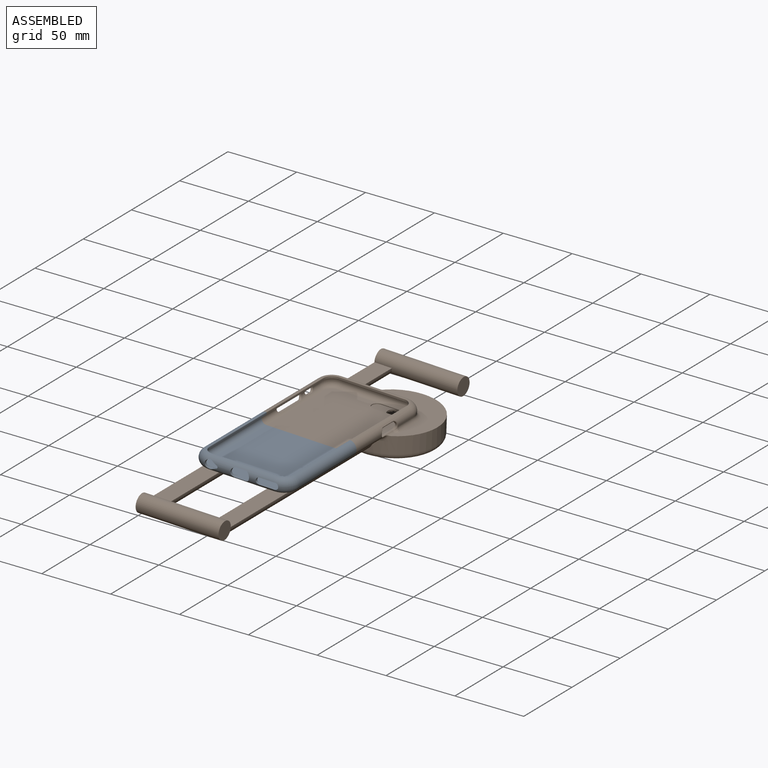
[diagram: assembled view]
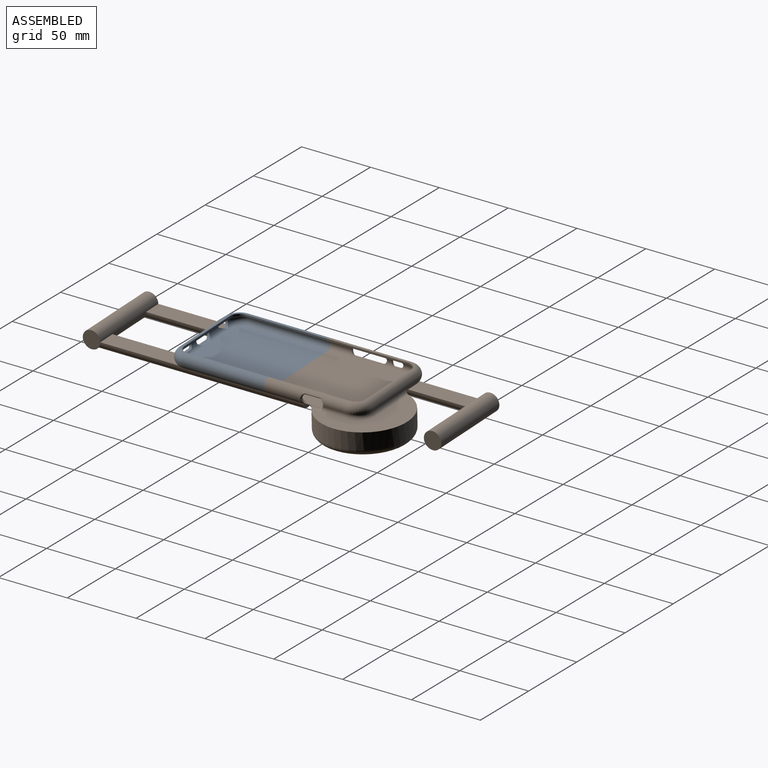
[diagram: assembled view, second angle]
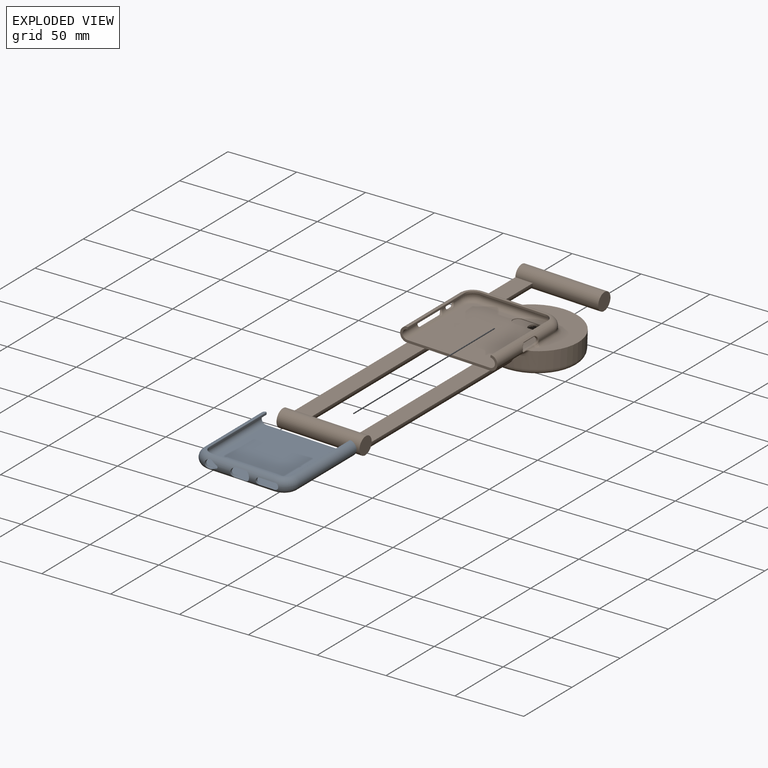
[diagram: exploded view]
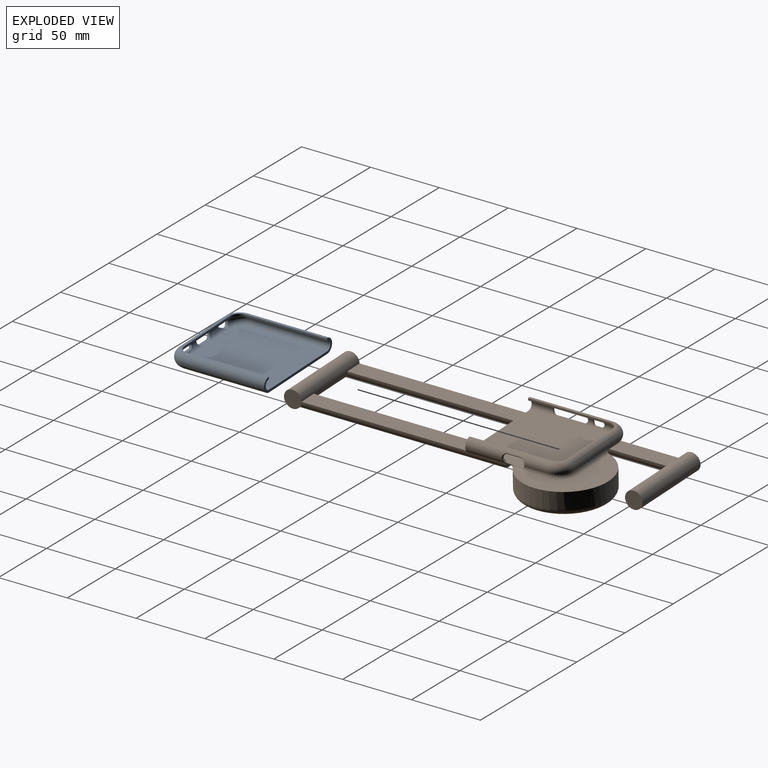
[diagram: exploded view, second angle]
ASSEMBLY  parts=2 mates=3
PART A: 35 faces, bbox 72.6x71.8x10.4 mm
  f0: plane 47.52x1.24mm, normal (0,1,0), area 59mm2, adj f13,f14,f16,f18
  f1: cylinder r=2.32mm len=4.65mm, axis (0,1,0), area 14.2mm2, adj f10,f12,f14,f20
  f2: plane 4.25x3.36mm, normal (-0.43,0,0.9), area 9.7mm2, adj f3,f5,f14,f20
  f3: cylinder r=1mm len=1.9mm, axis (0,1,0), area 4mm2, adj f2,f4,f14,f20
  f4: plane 4.25x3.35mm, normal (-0.43,0,-0.9), area 9.7mm2, adj f3,f5,f14,f20
  f5: cylinder r=3.25mm len=6.5mm, axis (0,1,0), area 31.1mm2, adj f2,f4,f14,f17,f19,f20
  f6: cylinder r=3.4mm len=6.8mm, axis (0,1,0), area 25.3mm2, adj f7,f9,f14,f20
  f7: plane 6.85x3.56mm, normal (0,0,1), area 24.4mm2, adj f6,f8,f14,f20
  f8: cylinder r=3.4mm len=6.8mm, axis (0,1,0), area 25.3mm2, adj f7,f9,f14,f20
  f9: plane 6.85x3.49mm, normal (0,0,-1), area 23.9mm2, adj f6,f8,f14,f20
  f10: plane 11.25x2.27mm, normal (0,0,1), area 24.1mm2, adj f1,f11,f14,f15,f20,f21
  f11: cylinder r=2.32mm len=4.65mm, axis (0,1,0), area 14.8mm2, adj f10,f12,f15,f21
  f12: plane 11.25x2.26mm, normal (0,0,-1), area 24.1mm2, adj f1,f11,f14,f15,f20,f21
  f13: cylinder r=0.51mm len=47.52mm, axis (-1,0,0), area 40.5mm2, adj f0,f20,f22,f23
  f14: cylinder r=3.43mm len=47.52mm, axis (-1,0,0), area 297mm2, adj f0,f1,f2,f3,f4,f5,f6,f7
  f15: torus R=6.37mm, axis (0,0,-1), area 127.5mm2, adj f10,f11,f12,f14,f16,f32,f33
  f16: cylinder r=6.37mm len=6.37mm, axis (0,0,-1), area 12.4mm2, adj f0,f15,f22,f31
  f17: torus R=6.37mm, axis (0,0,-1), area 136.6mm2, adj f5,f14,f18,f30,f33
  f18: cylinder r=6.37mm len=6.37mm, axis (0,0,-1), area 12.4mm2, adj f0,f17,f23,f29
  f19: torus R=6.37mm, axis (0,0,-1), area 235.3mm2, adj f5,f20,f23,f25,f26
  f20: cylinder r=5.2mm len=47.52mm, axis (-1,0,0), area 567.6mm2, adj f1,f2,f3,f4,f5,f6,f7,f8
  f21: torus R=6.37mm, axis (0,0,-1), area 226.6mm2, adj f10,f11,f12,f20,f22,f25,f28
  f22: torus R=6.88mm, axis (0,0,1), area 8.8mm2, adj f13,f16,f21,f27
  f23: torus R=6.88mm, axis (0,0,1), area 8.8mm2, adj f13,f18,f19,f24
  f24: cylinder r=0.51mm len=59.27mm, axis (0,1,0), area 50.6mm2, adj f23,f26,f29,f34
  f25: plane 65.64x60.26mm, normal (0,0,-1), area 3938.2mm2, adj f19,f20,f21,f26,f28,f34
  f26: cylinder r=5.2mm len=59.27mm, axis (0,1,0), area 935.4mm2, adj f19,f24,f25,f34
  f27: cylinder r=0.51mm len=59.27mm, axis (0,-1,0), area 50.6mm2, adj f22,f28,f31,f34
  f28: cylinder r=5.2mm len=59.27mm, axis (0,-1,0), area 935.4mm2, adj f21,f25,f27,f34
  f29: plane 59.27x1.24mm, normal (1,0,0), area 73.6mm2, adj f18,f24,f30,f34
  f30: cylinder r=3.43mm len=59.27mm, axis (0,1,0), area 637.7mm2, adj f17,f29,f33,f34
  f31: plane 59.27x1.24mm, normal (-1,0,0), area 73.6mm2, adj f16,f27,f32,f34
  f32: cylinder r=3.43mm len=59.27mm, axis (0,-1,0), area 637.7mm2, adj f15,f31,f33,f34
  f33: plane 65.64x60.26mm, normal (0,0,1), area 3938.2mm2, adj f14,f15,f17,f30,f32,f34
  f34: plane 70.67x10.38mm, normal (0,1,0), area 155.2mm2, adj f24,f25,f26,f27,f28,f29,f30,f31
PART B: 108 faces, bbox 89.9x260.4x25.3 mm
  f0: cylinder r=25.9mm len=19.74mm, axis (0,0,1), area 36.4mm2, adj f3,f64,f65,f66,f81,f83
  f1: cylinder r=25.9mm len=18.31mm, axis (0,0,1), area 36.3mm2, adj f3,f68,f70,f72,f79,f80
  f2: cylinder r=25.9mm len=15.88mm, axis (0,0,1), area 36.3mm2, adj f3,f73,f75,f76,f77,f78
  f3: plane 55.05x55.05mm, normal (0,0,-1), area 2308.5mm2, adj f0,f1,f2,f8,f30,f60,f63,f64
  f4: plane 65.64x34.86mm, normal (0,0,-1), area 1316.7mm2, adj f27,f58,f91,f97,f99
  f5: cylinder r=4.1mm len=8.2mm, axis (0,0,1), area 6.2mm2, adj f6,f7,f11,f20,f59
  f6: plane 12.06x1.27mm, normal (0,1,0), area 7.5mm2, adj f5,f8,f11,f29,f59,f60
  f7: plane 12.06x1.22mm, normal (0,-1,0), area 7mm2, adj f5,f10,f20,f29,f59,f60
  f8: cylinder r=0.51mm len=2.19mm, axis (1,0,0), area 1.2mm2, adj f3,f6,f30,f60
  f9: bspline ~4.26x1.79mm, area 1.4mm2, adj f10,f29,f30,f60
  f10: cylinder r=0.51mm len=1.41mm, axis (1,0,0), area 0.4mm2, adj f7,f9,f60
  f11: plane 65.64x60.26mm, normal (0,0,1), area 3790.2mm2, adj f5,f6,f12,f14,f20,f21,f24,f29
  f12: cylinder r=3.43mm len=59.27mm, axis (0,-1,0), area 571.1mm2, adj f11,f13,f21,f42,f43,f44,f45,f58
  f13: plane 59.27x1.24mm, normal (-1,0,0), area 73.6mm2, adj f12,f18,f22,f58
  f14: cylinder r=3.43mm len=59.27mm, axis (0,1,0), area 440.9mm2, adj f11,f15,f24,f34,f35,f36,f37,f38
  f15: plane 59.27x1.24mm, normal (1,0,0), area 73.6mm2, adj f14,f19,f25,f58
  f16: cylinder r=5.2mm len=59.27mm, axis (0,-1,0), area 637.1mm2, adj f18,f26,f46,f47,f48,f49,f58,f86
  f17: cylinder r=5.2mm len=59.27mm, axis (0,1,0), area 675.9mm2, adj f19,f28,f50,f51,f52,f53,f54,f55
  f18: cylinder r=0.51mm len=59.27mm, axis (0,-1,0), area 50.6mm2, adj f13,f16,f31,f58
  f19: cylinder r=0.51mm len=59.27mm, axis (0,1,0), area 50.6mm2, adj f15,f17,f33,f58
  f20: cylinder r=3.43mm len=47.52mm, axis (1,0,0), area 507.8mm2, adj f5,f7,f11,f21,f23,f24,f29
  f21: torus R=6.37mm, axis (0,0,-1), area 144.5mm2, adj f11,f12,f20,f22
  f22: cylinder r=6.37mm len=6.37mm, axis (0,0,-1), area 12.4mm2, adj f13,f21,f23,f31
  f23: plane 47.52x1.24mm, normal (0,-1,0), area 59mm2, adj f20,f22,f25,f32
  f24: torus R=6.37mm, axis (0,0,-1), area 144.5mm2, adj f11,f14,f20,f25
  f25: cylinder r=6.37mm len=6.37mm, axis (0,0,-1), area 12.4mm2, adj f15,f23,f24,f33
  f26: torus R=6.37mm, axis (0,0,-1), area 133.9mm2, adj f16,f27,f31,f85
  f27: cylinder r=5.2mm len=47.52mm, axis (1,0,0), area 477.6mm2, adj f4,f26,f28,f32,f87,f89,f96
  f28: torus R=6.37mm, axis (0,0,-1), area 242.7mm2, adj f17,f27,f33,f96
  f29: cylinder r=4.1mm len=8.2mm, axis (0,0,1), area 16.3mm2, adj f6,f7,f9,f11,f20,f30
  f30: torus R=4.61mm, axis (0,0,-1), area 8.2mm2, adj f3,f8,f9,f29,f60
  f31: torus R=6.88mm, axis (0,0,1), area 8.8mm2, adj f18,f22,f26,f32
  f32: cylinder r=0.51mm len=47.52mm, axis (1,0,0), area 40.5mm2, adj f23,f27,f31,f33
  f33: torus R=6.88mm, axis (0,0,1), area 8.8mm2, adj f19,f25,f28,f32
  f34: plane 3.63x1.25mm, normal (0,0,-1), area 4.5mm2, adj f14,f35,f37,f57
  f35: cylinder r=2.39mm len=4.77mm, axis (1,0,0), area 9.4mm2, adj f14,f34,f36,f55
  f36: plane 3.63x1.24mm, normal (0,0,1), area 4.5mm2, adj f14,f35,f37,f54
  f37: cylinder r=2.39mm len=4.77mm, axis (1,0,0), area 9.4mm2, adj f14,f34,f36,f56
  f38: plane 20.01x1.37mm, normal (0,0,-1), area 27.4mm2, adj f14,f39,f41,f53
  f39: cylinder r=2.8mm len=5.59mm, axis (1,0,0), area 11.4mm2, adj f14,f38,f40,f51
  f40: plane 20.01x1.35mm, normal (0,0,1), area 27mm2, adj f14,f39,f41,f50
  f41: cylinder r=2.8mm len=5.59mm, axis (1,0,0), area 11.4mm2, adj f14,f38,f40,f52
  f42: cylinder r=2.79mm len=5.59mm, axis (-1,0,0), area 11.4mm2, adj f12,f43,f45,f49
  f43: plane 10.2x1.37mm, normal (0,0,-1), area 13.9mm2, adj f12,f42,f44,f48
  f44: cylinder r=2.79mm len=5.59mm, axis (-1,0,0), area 11.4mm2, adj f12,f43,f45,f46
  f45: plane 10.2x1.35mm, normal (0,0,1), area 13.7mm2, adj f12,f42,f44,f47
  f46: bspline ~7.32x3.93mm, area 9.9mm2, adj f16,f44,f47,f48
  f47: cylinder r=0.51mm len=10.2mm, axis (0,-1,0), area 6.4mm2, adj f16,f45,f46,f49,f92,f94
  f48: cylinder r=0.51mm len=10.2mm, axis (0,-1,0), area 12.2mm2, adj f16,f43,f46,f49
  f49: bspline ~7.32x3.93mm, area 7.4mm2, adj f16,f42,f47,f48,f88,f90
  f50: cylinder r=0.51mm len=20.01mm, axis (0,1,0), area 23.8mm2, adj f17,f40,f51,f52
  f51: bspline ~7.33x3.94mm, area 9.9mm2, adj f17,f39,f50,f53
  f52: bspline ~7.33x3.93mm, area 9.9mm2, adj f17,f41,f50,f53
  f53: cylinder r=0.51mm len=20.01mm, axis (0,1,0), area 24mm2, adj f17,f38,f51,f52
  f54: cylinder r=0.51mm len=3.63mm, axis (0,1,0), area 4.1mm2, adj f17,f36,f55,f56
  f55: bspline ~6.42x3.47mm, area 8.2mm2, adj f17,f35,f54,f57
  f56: bspline ~6.42x3.47mm, area 8.2mm2, adj f17,f37,f54,f57
  f57: cylinder r=0.51mm len=3.63mm, axis (0,1,0), area 4.1mm2, adj f17,f34,f55,f56
  f58: plane 70.67x10.38mm, normal (0,-1,0), area 155.2mm2, adj f4,f11,f12,f13,f14,f15,f16,f17
  f59: plane 14.75x8.2mm, normal (0,0,1), area 94.9mm2, adj f5,f6,f7,f60
  f60: cylinder r=4.52mm len=9.05mm, axis (0,0,-1), area 14.6mm2, adj f3,f6,f7,f8,f9,f10,f30,f59
  f61: cylinder r=31.5mm len=62.99mm, axis (0,0,-1), area 2111.2mm2, adj f62,f84,f87,f89,f91,f92,f93,f94
  f62: plane 60.72x58.39mm, normal (0,0,1), area 1270.8mm2, adj f61,f85,f86,f87,f88,f92
  f63: cylinder r=27.52mm len=55.04mm, axis (0,0,1), area 2374.9mm2, adj f3,f64,f65,f66,f82,f84
  f64: plane 9.51x1.42mm, normal (0.87,0.49,0), area 15.3mm2, adj f0,f3,f63,f66
  f65: plane 1.82x1.2mm, normal (-0.96,-0.28,0), area 2.2mm2, adj f0,f63,f66,f83
  f66: plane 20.55x5.06mm, normal (0,0,-1), area 33.1mm2, adj f0,f63,f64,f65
  f67: plane 9.5x1.15mm, normal (-1,0.04,0), area 10.9mm2, adj f3,f69,f70,f71,f79
  f68: plane 9.5x1.62mm, normal (0,-1,0), area 15.3mm2, adj f1,f3,f69,f70
  f69: cylinder r=27.51mm len=9.5mm, axis (0,0,1), area 3.7mm2, adj f3,f67,f68,f70
  f70: plane 18.75x9.37mm, normal (0,0,-1), area 33.2mm2, adj f1,f67,f68,f69,f71,f72
  f71: cylinder r=27.51mm len=17.22mm, axis (0,0,1), area 22.9mm2, adj f67,f70,f72,f80
  f72: plane 1.83x1.19mm, normal (0.23,0.97,0), area 2.2mm2, adj f1,f70,f71,f80
  f73: plane 9.5x1.39mm, normal (-0.86,0.51,0), area 15.3mm2, adj f2,f3,f74,f76
  f74: cylinder r=27.51mm len=15.9mm, axis (0,0,1), area 37.3mm2, adj f3,f73,f75,f76,f77,f78
  f75: plane 1.37x1.3mm, normal (0.73,-0.69,0), area 2.2mm2, adj f2,f74,f76,f78
  f76: plane 17.27x13.27mm, normal (0,0,-1), area 33.2mm2, adj f2,f73,f74,f75
  f77: plane 8.31x1.35mm, normal (0.83,-0.55,0), area 13.4mm2, adj f2,f3,f74,f78
  f78: plane 16.46x12.06mm, normal (0,0,1), area 30.8mm2, adj f2,f74,f75,f77
  f79: plane 8.31x1.62mm, normal (0.06,1,0), area 13.4mm2, adj f1,f3,f67,f80
  f80: plane 17.32x9.32mm, normal (0,0,1), area 30.8mm2, adj f1,f71,f72,f79
  f81: plane 8.31x1.45mm, normal (-0.9,-0.45,0), area 13.4mm2, adj f0,f3,f82,f83
  f82: cylinder r=27.51mm len=18.65mm, axis (0,0,1), area 159.1mm2, adj f3,f63,f81,f83
  f83: plane 19.18x4.32mm, normal (0,0,1), area 30.8mm2, adj f0,f65,f81,f82
  f84: torus R=27.43mm, axis (0,0,-1), area 1188.7mm2, adj f61,f63
  f85: torus R=14.1mm, axis (0,0,-1), area 88.4mm2, adj f26,f62,f86,f87
  f86: cylinder r=2.63mm len=16.34mm, axis (0,-1,0), area 74.6mm2, adj f16,f62,f85,f88
  f87: cylinder r=2.63mm len=36.27mm, axis (1,0,0), area 158.1mm2, adj f27,f61,f62,f85,f89
  f88: bspline ~4.07x3.69mm, area 10.1mm2, adj f49,f62,f86,f90
  f89: bspline ~8.44x7.92mm, area 28.7mm2, adj f27,f61,f87,f91
  f90: bspline ~2.04x1.79mm, area 1.5mm2, adj f49,f88,f92
  f91: torus R=34.13mm, axis (0,0,-1), area 268.9mm2, adj f4,f61,f89,f93,f107
  f92: cylinder r=2.63mm len=8.03mm, axis (0,-1,0), area 14.4mm2, adj f47,f61,f62,f90,f94
  f93: bspline ~6.72x5.27mm, area 19.4mm2, adj f16,f61,f91,f94
  f94: bspline ~4.91x3.04mm, area 3.7mm2, adj f47,f61,f92,f93
  f95: plane 122.68x12.7mm, normal (0,0,1), area 1558.1mm2, adj f58,f97,f104
  f96: plane 53x12.7mm, normal (0,0,1), area 600.9mm2, adj f27,f28,f97,f102
  f97: cylinder r=6.35mm len=247.65mm, axis (0,1,0), area 4813.7mm2, adj f4,f17,f95,f96,f102,f104
  f98: plane 4.71x0.54mm, normal (0,1,0), area 1.5mm2, adj f99,f107
  f99: cylinder r=6.35mm len=158.22mm, axis (0,-1,0), area 3014.9mm2, adj f4,f16,f98,f100,f104,f107
  f100: plane 122.68x12.7mm, normal (0,0,1), area 1558.1mm2, adj f58,f99,f104
  f101: plane 12.7x12.7mm, normal (-1,0,0), area 126.7mm2, adj f102
  f102: cylinder r=6.35mm len=60.26mm, axis (-1,0,0), area 2341mm2, adj f96,f97,f101,f103
  f103: plane 12.7x12.7mm, normal (1,0,0), area 126.7mm2, adj f102
  f104: cylinder r=6.35mm len=60.26mm, axis (-1,0,0), area 2277.7mm2, adj f95,f97,f99,f100,f105,f106
  f105: plane 12.7x12.7mm, normal (-1,0,0), area 126.7mm2, adj f104
  f106: plane 12.7x12.7mm, normal (1,0,0), area 126.7mm2, adj f104
  f107: bspline ~16.09x6.33mm, area 69.7mm2, adj f91,f98,f99
PLACE A rot(axis=(0,1,0),2.1deg) t=(-1.57,6.58,-8.27)mm
PLACE B rot(axis=(0,1,0),2.1deg) t=(-1.57,6.58,-8.27)mm fixed
MATE planar B.f14 <-> A.f26  axis (0,-1,0) through (-31.5,6.58,-2.37)mm
MATE fastened B.f12 <-> A.f28  axis (0,-1,0) through (28.72,6.58,-4.59)mm
MATE cylindrical A.f26 <-> B.f14  axis (0,1,0) through (-31.5,6.58,-2.37)mm
